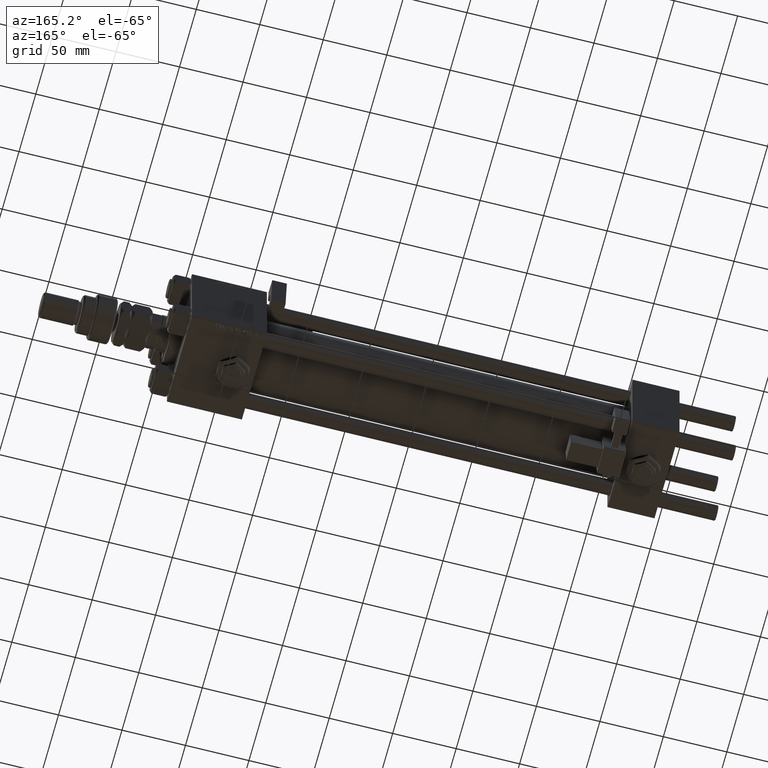
[diagram: clean part render]
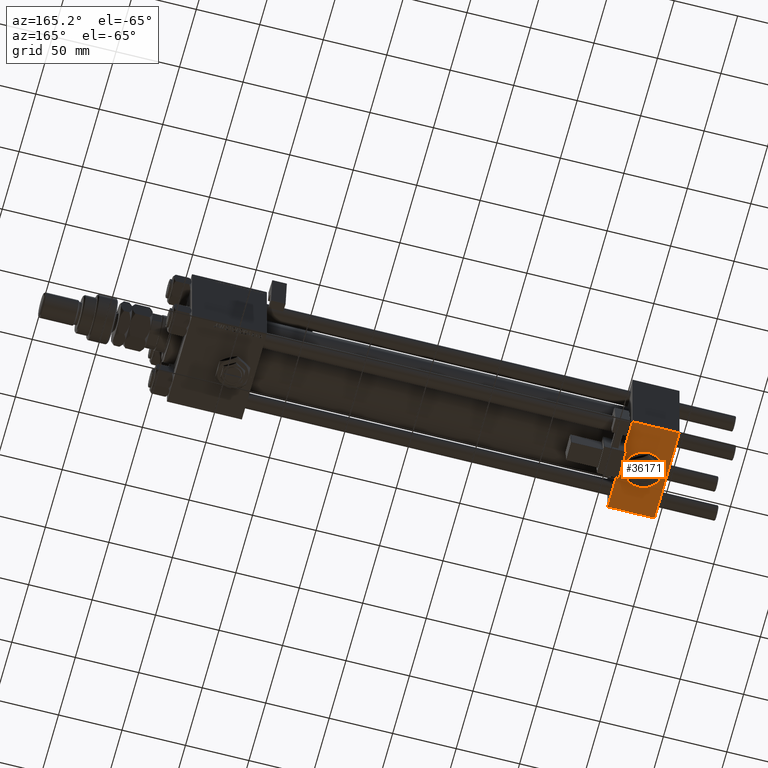
[diagram: same view with one face highlighted and labeled with its STEP entity id]
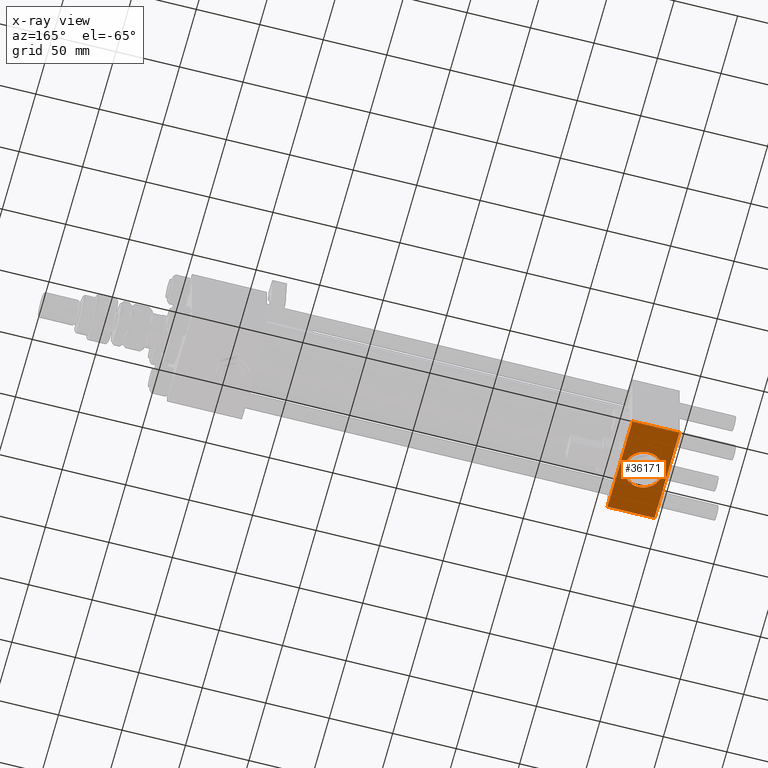
[diagram: x-ray of the same camera — body ghosted, the highlighted face saturated]
A machine part, auxiliary view. The second image highlights one B-rep face of the part: STEP entity #36171.
The next image is the same camera in x-ray: the body ghosted, the highlighted face saturated — about 0% of this face is hidden behind the body in this view.
In plain terms, the highlighted planar face has unit normal (0, 0, -1).
Its self-contained STEP definition (entity closure, byte-faithful):
#816 = EDGE_CURVE ( 'NONE', #34689, #26067, #41377, .T. ) ;
#954 = CARTESIAN_POINT ( 'NONE',  ( 0.000000000000000000, 37.49999999999999289, -37.50000000000000000 ) ) ;
#1161 = CARTESIAN_POINT ( 'NONE',  ( 18.50000000000000355, -14.99999999999999822, -37.50000000000000711 ) ) ;
#6055 = ORIENTED_EDGE ( 'NONE', *, *, #38685, .F. ) ;
#6880 = CARTESIAN_POINT ( 'NONE',  ( 0.000000000000000000, -37.00000000000002132, -37.50000000000000711 ) ) ;
#7012 = DIRECTION ( 'NONE',  ( 1.000000000000000000, 0.000000000000000000, 0.000000000000000000 ) ) ;
#7310 = EDGE_CURVE ( 'NONE', #18271, #39080, #7951, .T. ) ;
#7399 = CARTESIAN_POINT ( 'NONE',  ( 0.000000000000000000, 36.99999999999997868, -37.50000000000000000 ) ) ;
#7447 = CARTESIAN_POINT ( 'NONE',  ( 37.00000000000000000, 36.99999999999997868, -37.50000000000000000 ) ) ;
#7550 = ORIENTED_EDGE ( 'NONE', *, *, #54305, .F. ) ;
#7951 = CIRCLE ( 'NONE', #15315, 15.00000000000000000 ) ;
#8866 = AXIS2_PLACEMENT_3D ( 'NONE', #15931, #46107, #38331 ) ;
#9582 = DIRECTION ( 'NONE',  ( 0.000000000000000000, 9.251858538542972814E-17, -1.000000000000000000 ) ) ;
#9655 = DIRECTION ( 'NONE',  ( 0.000000000000000000, -1.000000000000000000, -9.251858538542972814E-17 ) ) ;
#9799 = ORIENTED_EDGE ( 'NONE', *, *, #24474, .T. ) ;
#13904 = DIRECTION ( 'NONE',  ( 0.000000000000000000, -1.000000000000000000, -9.251858538542972814E-17 ) ) ;
#13914 = FACE_OUTER_BOUND ( 'NONE', #42218, .T. ) ;
#15315 = AXIS2_PLACEMENT_3D ( 'NONE', #48245, #46342, #21048 ) ;
#15465 = VERTEX_POINT ( 'NONE', #7399 ) ;
#15931 = CARTESIAN_POINT ( 'NONE',  ( 18.50000000000000000, 1.999870792976790439E-15, -37.50000000000000711 ) ) ;
#16658 = CARTESIAN_POINT ( 'NONE',  ( 0.000000000000000000, -37.00000000000002132, -37.50000000000000711 ) ) ;
#18271 = VERTEX_POINT ( 'NONE', #39764 ) ;
#18852 = LINE ( 'NONE', #54743, #30797 ) ;
#21048 = DIRECTION ( 'NONE',  ( 0.000000000000000000, 1.000000000000000000, 0.000000000000000000 ) ) ;
#21742 = VECTOR ( 'NONE', #13904, 1000.000000000000000 ) ;
#24474 = EDGE_CURVE ( 'NONE', #15465, #51390, #37754, .T. ) ;
#26034 = VECTOR ( 'NONE', #32170, 1000.000000000000000 ) ;
#26067 = VERTEX_POINT ( 'NONE', #16658 ) ;
#26535 = LINE ( 'NONE', #954, #21742 ) ;
#27112 = DIRECTION ( 'NONE',  ( 0.000000000000000000, 1.000000000000000000, 9.251858538542972814E-17 ) ) ;
#30797 = VECTOR ( 'NONE', #9655, 1000.000000000000000 ) ;
#31401 = PLANE ( 'NONE',  #43648 ) ;
#32170 = DIRECTION ( 'NONE',  ( -1.000000000000000000, 0.000000000000000000, 0.000000000000000000 ) ) ;
#33289 = EDGE_CURVE ( 'NONE', #51390, #34689, #18852, .T. ) ;
#34689 = VERTEX_POINT ( 'NONE', #50368 ) ;
#36171 = ADVANCED_FACE ( 'NONE', ( #49217, #13914 ), #31401, .T. ) ;
#37754 = LINE ( 'NONE', #40931, #48791 ) ;
#38331 = DIRECTION ( 'NONE',  ( 0.000000000000000000, 1.000000000000000000, 0.000000000000000000 ) ) ;
#38685 = EDGE_CURVE ( 'NONE', #15465, #26067, #26535, .T. ) ;
#39080 = VERTEX_POINT ( 'NONE', #1161 ) ;
#39764 = CARTESIAN_POINT ( 'NONE',  ( 18.50000000000000000, 15.00000000000000178, -37.50000000000000711 ) ) ;
#40047 = CIRCLE ( 'NONE', #8866, 15.00000000000000000 ) ;
#40931 = CARTESIAN_POINT ( 'NONE',  ( 37.00000000000000000, 36.99999999999997868, -37.50000000000000000 ) ) ;
#41377 = LINE ( 'NONE', #6880, #26034 ) ;
#42218 = EDGE_LOOP ( 'NONE', ( #6055, #9799, #47909, #55963 ) ) ;
#43648 = AXIS2_PLACEMENT_3D ( 'NONE', #48941, #9582, #27112 ) ;
#46107 = DIRECTION ( 'NONE',  ( 0.000000000000000000, -1.734723475976806848E-16, -1.000000000000000000 ) ) ;
#46186 = EDGE_LOOP ( 'NONE', ( #55679, #7550 ) ) ;
#46342 = DIRECTION ( 'NONE',  ( 0.000000000000000000, -1.734723475976806848E-16, -1.000000000000000000 ) ) ;
#47909 = ORIENTED_EDGE ( 'NONE', *, *, #33289, .T. ) ;
#48245 = CARTESIAN_POINT ( 'NONE',  ( 18.50000000000000000, 1.999870792976790439E-15, -37.50000000000000711 ) ) ;
#48791 = VECTOR ( 'NONE', #7012, 1000.000000000000000 ) ;
#48941 = CARTESIAN_POINT ( 'NONE',  ( 37.00000000000000000, 37.49999999999999289, -37.50000000000000000 ) ) ;
#49217 = FACE_BOUND ( 'NONE', #46186, .T. ) ;
#50368 = CARTESIAN_POINT ( 'NONE',  ( 37.00000000000000000, -37.00000000000002132, -37.50000000000000711 ) ) ;
#51390 = VERTEX_POINT ( 'NONE', #7447 ) ;
#54305 = EDGE_CURVE ( 'NONE', #39080, #18271, #40047, .T. ) ;
#54743 = CARTESIAN_POINT ( 'NONE',  ( 37.00000000000000000, 37.49999999999999289, -37.50000000000000000 ) ) ;
#55679 = ORIENTED_EDGE ( 'NONE', *, *, #7310, .F. ) ;
#55963 = ORIENTED_EDGE ( 'NONE', *, *, #816, .T. ) ;